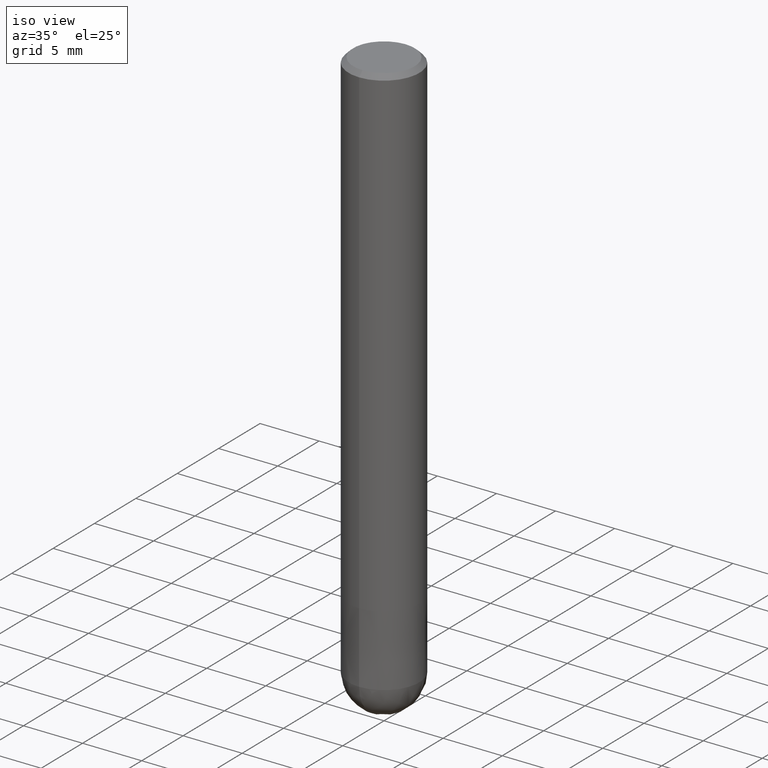
[diagram: clean part render]
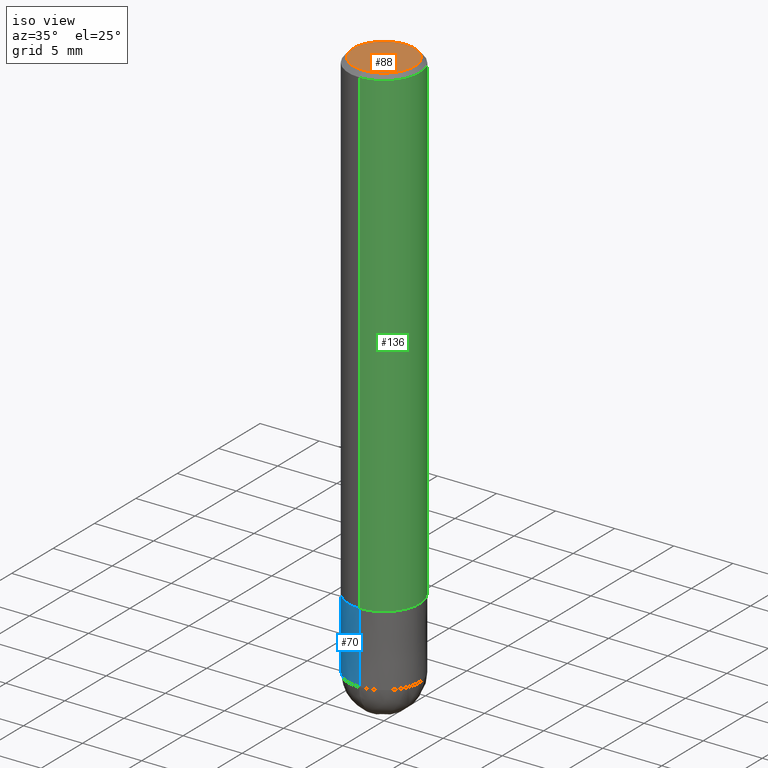
[diagram: same view with three faces highlighted in distinct colors, each labeled with its STEP entity id]
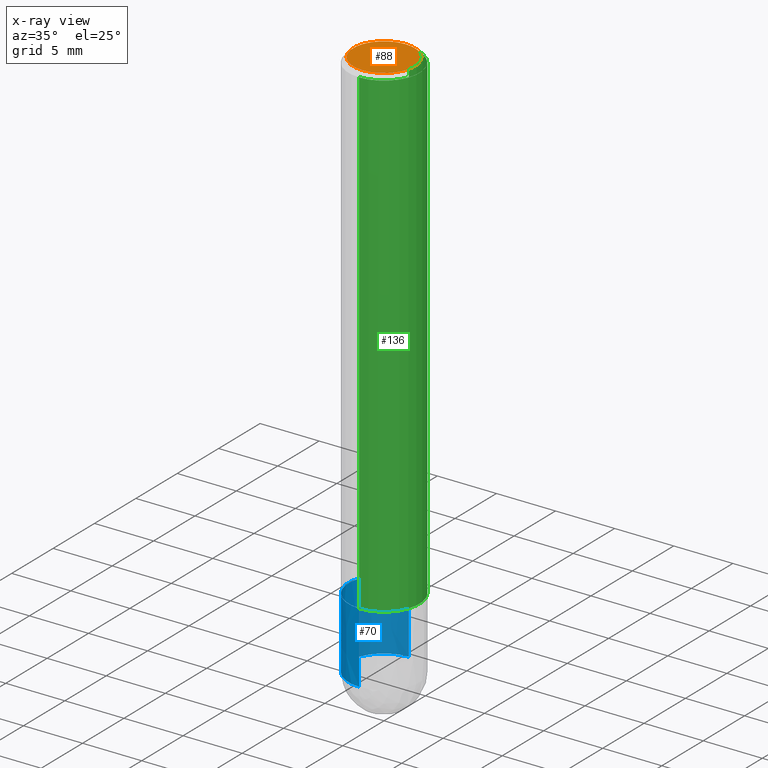
[diagram: x-ray of the same camera — body ghosted, the three highlighted faces saturated]
A machine part, iso view with three faces highlighted in distinct colors.
The next image is the same camera in x-ray (body ghosted, the three faces saturated) — at least one of them is partly hidden behind the body in this view.
Their STEP definitions:

[orange] entity #88 — the highlighted planar face has unit normal (-0, 0, 1).
#86=EDGE_CURVE('',#92,#94,#182,.T.);
#88=ADVANCED_FACE('',(#184),#185,.T.);
#92=VERTEX_POINT('',#189);
#94=VERTEX_POINT('',#191);
#132=EDGE_CURVE('',#94,#92,#234,.T.);
#182=CIRCLE('',#283,2.6);
#184=FACE_OUTER_BOUND('',#285,.T.);
#185=PLANE('',#286);
#189=CARTESIAN_POINT('',(0.0,2.6,0.0));
#191=CARTESIAN_POINT('',(3.18397651993818E-016,-2.6,0.0));
#234=CIRCLE('',#347,2.6);
#283=AXIS2_PLACEMENT_3D('',#389,#390,#391);
#285=EDGE_LOOP('',(#393,#394));
#286=AXIS2_PLACEMENT_3D('',#395,#396,#397);
#347=AXIS2_PLACEMENT_3D('',#458,#459,#460);
#389=CARTESIAN_POINT('',(0.0,0.0,0.0));
#390=DIRECTION('',(0.0,0.0,-1.0));
#391=DIRECTION('',(0.0,1.0,0.0));
#393=ORIENTED_EDGE('',*,*,#86,.F.);
#394=ORIENTED_EDGE('',*,*,#132,.F.);
#395=CARTESIAN_POINT('',(0.0,1.3,0.0));
#396=DIRECTION('',(-0.0,0.0,1.0));
#397=DIRECTION('',(0.0,-1.0,0.0));
#458=CARTESIAN_POINT('',(0.0,0.0,0.0));
#459=DIRECTION('',(0.0,0.0,-1.0));
#460=DIRECTION('',(0.0,1.0,0.0));

[blue] entity #70 — the highlighted conical surface has half-angle 0.001 deg.
#62=VERTEX_POINT('',#154);
#64=EDGE_CURVE('',#62,#96,#156,.T.);
#68=EDGE_CURVE('',#96,#78,#162,.T.);
#70=ADVANCED_FACE('',(#164),#165,.T.);
#78=VERTEX_POINT('',#174);
#90=EDGE_CURVE('',#78,#114,#187,.T.);
#96=VERTEX_POINT('',#193);
#114=VERTEX_POINT('',#215);
#120=EDGE_CURVE('',#62,#114,#222,.T.);
#154=CARTESIAN_POINT('',(3.67381906146713E-016,-3.0,-47.0));
#156=LINE('',#250,#251);
#162=CIRCLE('',#258,2.9999);
#164=FACE_OUTER_BOUND('',#260,.T.);
#165=CONICAL_SURFACE('',#261,2.99995,1.66666666652326E-005);
#174=CARTESIAN_POINT('',(0.0,2.9999,-41.0));
#187=LINE('',#289,#290);
#193=CARTESIAN_POINT('',(3.67369660083175E-016,-2.9999,-41.0));
#215=CARTESIAN_POINT('',(0.0,3.0,-47.0));
#222=CIRCLE('',#329,3.0);
#250=CARTESIAN_POINT('',(3.67375783114944E-016,-2.99995,-44.0));
#251=VECTOR('',#356,1.0);
#258=AXIS2_PLACEMENT_3D('',#365,#366,#367);
#260=EDGE_LOOP('',(#369,#370,#371,#372));
#261=AXIS2_PLACEMENT_3D('',#373,#374,#375);
#289=CARTESIAN_POINT('',(-3.67375783114944E-016,2.99995,-44.0));
#290=VECTOR('',#398,1.0);
#329=AXIS2_PLACEMENT_3D('',#445,#446,#447);
#356=DIRECTION('',(-2.04101058943386E-021,1.6666666664461E-005,0.999999999861111));
#365=CARTESIAN_POINT('',(0.0,0.0,-41.0));
#366=DIRECTION('',(0.0,0.0,-1.0));
#367=DIRECTION('',(0.0,1.0,0.0));
#369=ORIENTED_EDGE('',*,*,#90,.T.);
#370=ORIENTED_EDGE('',*,*,#120,.F.);
#371=ORIENTED_EDGE('',*,*,#64,.T.);
#372=ORIENTED_EDGE('',*,*,#68,.T.);
#373=CARTESIAN_POINT('',(0.0,0.0,-44.0));
#374=DIRECTION('',(0.0,-0.0,-1.0));
#375=DIRECTION('',(0.0,1.0,0.0));
#398=DIRECTION('',(-2.04101058943386E-021,1.6666666664461E-005,-0.999999999861111));
#445=CARTESIAN_POINT('',(0.0,0.0,-47.0));
#446=DIRECTION('',(0.0,0.0,-1.0));
#447=DIRECTION('',(0.0,1.0,0.0));

[green] entity #136 — the highlighted cylindrical surface (partial cylindrical patch) has radius 3 mm, axis along (-0, -0, 1).
#80=VERTEX_POINT('',#176);
#82=VERTEX_POINT('',#178);
#84=EDGE_CURVE('',#80,#82,#180,.T.);
#98=VERTEX_POINT('',#195);
#110=EDGE_CURVE('',#98,#130,#211,.T.);
#116=EDGE_CURVE('',#82,#130,#217,.T.);
#128=EDGE_CURVE('',#98,#80,#230,.T.);
#130=VERTEX_POINT('',#232);
#136=ADVANCED_FACE('',(#238),#239,.T.);
#176=CARTESIAN_POINT('',(0.0,3.0,-41.0));
#178=CARTESIAN_POINT('',(3.67381906146713E-016,-3.0,-41.0));
#180=CIRCLE('',#280,3.0);
#195=CARTESIAN_POINT('',(0.0,3.0,-0.399999999999999));
#211=CIRCLE('',#316,3.0);
#217=LINE('',#322,#323);
#230=LINE('',#341,#342);
#232=CARTESIAN_POINT('',(3.67381906146713E-016,-3.0,-0.399999999999999));
#238=FACE_OUTER_BOUND('',#353,.T.);
#239=CYLINDRICAL_SURFACE('',#354,3.0);
#280=AXIS2_PLACEMENT_3D('',#386,#387,#388);
#316=AXIS2_PLACEMENT_3D('',#432,#433,#434);
#322=CARTESIAN_POINT('',(3.67381906146713E-016,-3.0,-20.7));
#323=VECTOR('',#436,1.0);
#341=CARTESIAN_POINT('',(-3.67381906146713E-016,3.0,-20.7));
#342=VECTOR('',#457,1.0);
#353=EDGE_LOOP('',(#463,#464,#465,#466));
#354=AXIS2_PLACEMENT_3D('',#467,#468,#469);
#386=CARTESIAN_POINT('',(0.0,0.0,-41.0));
#387=DIRECTION('',(0.0,0.0,-1.0));
#388=DIRECTION('',(0.0,1.0,0.0));
#432=CARTESIAN_POINT('',(0.0,0.0,-0.399999999999999));
#433=DIRECTION('',(0.0,0.0,-1.0));
#434=DIRECTION('',(0.0,1.0,0.0));
#436=DIRECTION('',(-0.0,-0.0,1.0));
#457=DIRECTION('',(0.0,0.0,-1.0));
#463=ORIENTED_EDGE('',*,*,#128,.F.);
#464=ORIENTED_EDGE('',*,*,#110,.T.);
#465=ORIENTED_EDGE('',*,*,#116,.F.);
#466=ORIENTED_EDGE('',*,*,#84,.F.);
#467=CARTESIAN_POINT('',(0.0,0.0,-20.7));
#468=DIRECTION('',(-0.0,-0.0,1.0));
#469=DIRECTION('',(0.0,1.0,0.0));